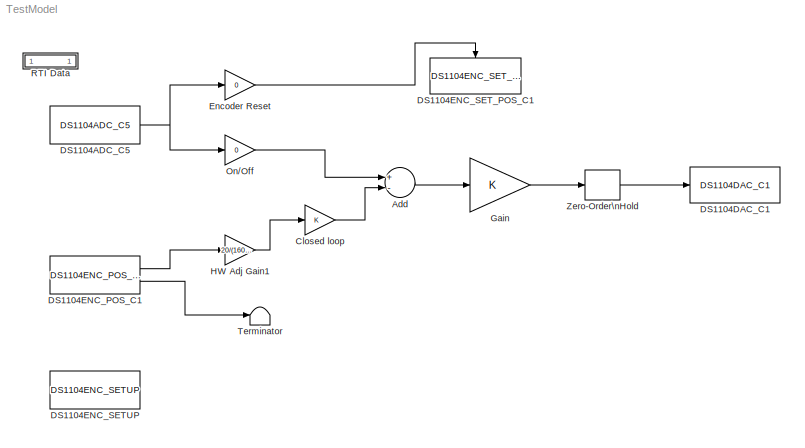
MODEL TestModel
KIND model
CONFIG PostLoadFcn = , if any(exist('dsrtsu_mdlpostloadfcn', 'file') == [2, 3, 6]), try dsrtsu_mdlpostloadfcn('Execute', bdroot); catch fprintf('Error in PostLoadFcn (dsrtsu_mdlpostloadfcn) for model \"%s\":\\n %s\\n', bdroot, lasterr); end, end, \n
BLOCK [Sum] Add
  InputSameDT = off
  Inputs = +-
  OutDataType = fixdt(1, 16)
  OutDataTypeMode = Inherit via internal rule
  OutDataTypeStr = Inherit: Inherit via internal rule
  OutScaling = 2^-10
  Ports = [2, 1]
  SaturateOnIntegerOverflow = off
BLOCK [Gain] Closed loop
  OutDataType = fixdt(1, 16)
  OutDataTypeMode = Inherit via internal rule
  OutDataTypeStr = Inherit: Inherit via internal rule
  OutScaling = 2^0
  ParamDataTypeStr = Inherit: Inherit via internal rule
  ParameterDataType = fixdt(1, 16)
  ParameterDataTypeMode = Inherit via internal rule
  ParameterScaling = 2^0
  SaturateOnIntegerOverflow = off
BLOCK [Reference] DS1104ADC_C5  REF=rtilib1104/DS1104 MASTER PPC/DS1104ADC_C5
  ChannelNo = 5
  DSProperties = struct('RTI',struct('Version',uint32(1),'BlockType',struct('isSLSource',uint8(1),'isSLSink',uint8(0),'isHWSource',uint8(1),'isHWSink',uint8(0),'isSetup',uint8(0),'isInline',uint8(1),'isNonInline',uint8(0),'isInterrupt',uint8(0),'isChannelwise',uint8(1)),'IOBoardType','DS1104MASTER','UnitType','ADC','Identifier','ADC','DialogType','ML','BlockSet','NONE','SlaveProcessor','NONE'))
  DialogFcn = gui1104adc
  FunctionWithSeparateData = off
  Ports = [0, 1]
  RTWMemSecDataConstants = Inherit from model
  RTWMemSecDataInternal = Inherit from model
  RTWMemSecDataParameters = Inherit from model
  RTWMemSecFuncExecute = Inherit from model
  RTWMemSecFuncInitTerm = Inherit from model
  Reserved1 = []
  Reserved2 = []
  Reserved3 = []
  Reserved4 = []
  ShowPortLabels = FromPortIcon
  SourceBlock = rtilib1104/DS1104 MASTER PPC/DS1104ADC_C5
  SourceType = RTI
  SystemSampleTime = -1
  TriggerMode = 0
  UnitName = { 'DS1104ADC_C' }
  UnitValues = { 5 }
BLOCK [Reference] DS1104DAC_C1  REF=rtilib1104/DS1104 MASTER PPC/DS1104DAC_C1
  ChannelNo = 1
  DSProperties = struct('RTI',struct('Version',uint32(1),'BlockType',struct('isSLSource',uint8(0),'isSLSink',uint8(1),'isHWSource',uint8(0),'isHWSink',uint8(1),'isSetup',uint8(0),'isInline',uint8(1),'isNonInline',uint8(0),'isInterrupt',uint8(0),'isChannelwise',uint8(1)),'IOBoardType','DS1104MASTER','UnitType','DAC','Identifier','DAC','DialogType','ML','BlockSet','NONE','SlaveProcessor','NONE'))
  DialogFcn = gui1104dac
  FunctionWithSeparateData = off
  InitValue = 0
  Ports = [1]
  RTWMemSecDataConstants = Inherit from model
  RTWMemSecDataInternal = Inherit from model
  RTWMemSecDataParameters = Inherit from model
  RTWMemSecFuncExecute = Inherit from model
  RTWMemSecFuncInitTerm = Inherit from model
  Reserved1 = []
  Reserved2 = []
  Reserved3 = []
  Reserved4 = []
  ShowPortLabels = FromPortIcon
  SourceBlock = rtilib1104/DS1104 MASTER PPC/DS1104DAC_C1
  SourceType = RTI
  SystemSampleTime = -1
  TermMode = 0
  TermValue = 0
  UnitName = { 'DS1104DAC_C'}
  UnitValues = { 1 }
BLOCK [Reference] DS1104ENC_POS_C1  REF=rtilib1104/DS1104 MASTER PPC/DS1104ENC_POS_C1
  ChannelNo = 1
  DSProperties = struct('RTI',struct('Version',uint32(1),'BlockType',struct('isSLSource',uint8(1),'isSLSink',uint8(0),'isHWSource',uint8(1),'isHWSink',uint8(0),'isSetup',uint8(0),'isInline',uint8(1),'isNonInline',uint8(0),'isInterrupt',uint8(0),'isChannelwise',uint8(1)),'IOBoardType','DS1104MASTER','UnitType','ENC','Identifier','ENCPOSCH','DialogType','ML','BlockSet','NONE','SlaveProcessor','NONE'))
  DialogFcn = gui1104enc_pos
  FunctionWithSeparateData = off
  Ports = [0, 2]
  PosValue = 0
  RTWMemSecDataConstants = Inherit from model
  RTWMemSecDataInternal = Inherit from model
  RTWMemSecDataParameters = Inherit from model
  RTWMemSecFuncExecute = Inherit from model
  RTWMemSecFuncInitTerm = Inherit from model
  Reserved1 = []
  Reserved2 = []
  Reserved3 = []
  Reserved4 = []
  ShowPortLabels = FromPortIcon
  SourceBlock = rtilib1104/DS1104 MASTER PPC/DS1104ENC_POS_C1
  SourceType = RTI
  SystemSampleTime = -1
  UnitName = {'DS1104ENC_POS_C'}
  UnitValues = { 1 }
BLOCK [Reference] DS1104ENC_SETUP  REF=rtilib1104/DS1104 MASTER PPC/DS1104ENC_SETUP
  DSProperties = struct('RTI',struct('Version',uint32(1),'BlockType',struct('isSLSource',uint8(0),'isSLSink',uint8(0),'isHWSource',uint8(0),'isHWSink',uint8(0),'isSetup',uint8(0),'isInline',uint8(1),'isNonInline',uint8(0),'isInterrupt',uint8(0),'isChannelwise',uint8(0)),'IOBoardType','DS1104MASTER','UnitType','ENC','Identifier','ENCSETUP','DialogType','ML','BlockSet','NONE','SlaveProcessor','NONE'))
  DialogFcn = gui1104enc_setup
  FunctionWithSeparateData = off
  Ports = []
  RTWMemSecDataConstants = Inherit from model
  RTWMemSecDataInternal = Inherit from model
  RTWMemSecDataParameters = Inherit from model
  RTWMemSecFuncExecute = Inherit from model
  RTWMemSecFuncInitTerm = Inherit from model
  Reserved1 = []
  Reserved2 = []
  Reserved3 = []
  Reserved4 = []
  ShowPortLabels = FromPortIcon
  SignalType = [0 0]
  SourceBlock = rtilib1104/DS1104 MASTER PPC/DS1104ENC_SETUP
  SourceType = RTI
  SystemSampleTime = -1
  UnitName = {'DS1104ENC_SETUP'}
  UnitValues = { [] }
BLOCK [Reference] DS1104ENC_SET_POS_C1  REF=rtilib1104/DS1104 MASTER PPC/DS1104ENC_SET_POS_C1
  ChannelNo = 1
  DSProperties = struct('RTI',struct('Version',uint32(1),'BlockType',struct('isSLSource',uint8(0),'isSLSink',uint8(1),'isHWSource',uint8(0),'isHWSink',uint8(1),'isSetup',uint8(0),'isInline',uint8(1),'isNonInline',uint8(0),'isInterrupt',uint8(0),'isChannelwise',uint8(1)),'IOBoardType','DS1104MASTER','UnitType','ENC','Identifier','ENCRESET','DialogType','ML','BlockSet','NONE','SlaveProcessor','NONE'))
  DialogFcn = gui1104enc_set_pos
  FunctionWithSeparateData = off
  Ports = [0, 0, 0, 1]
  PosValue = 0
  RTWMemSecDataConstants = Inherit from model
  RTWMemSecDataInternal = Inherit from model
  RTWMemSecDataParameters = Inherit from model
  RTWMemSecFuncExecute = Inherit from model
  RTWMemSecFuncInitTerm = Inherit from model
  Reserved1 = []
  Reserved2 = []
  Reserved3 = []
  Reserved4 = []
  ShowPortLabels = FromPortIcon
  SourceBlock = rtilib1104/DS1104 MASTER PPC/DS1104ENC_SET_POS_C1
  SourceType = RTI
  SystemSampleTime = -1
  UnitName = {'DS1104ENC_SET_POS_C'}
  UnitValues = { 1 }
BLOCK [Gain] Encoder Reset
  Gain = 0
  OutDataType = fixdt(1, 16)
  OutDataTypeMode = Inherit via internal rule
  OutDataTypeStr = Inherit: Inherit via internal rule
  OutScaling = 2^0
  ParamDataTypeStr = Inherit: Inherit via internal rule
  ParameterDataType = fixdt(1, 16)
  ParameterDataTypeMode = Inherit via internal rule
  ParameterScaling = 2^0
  SaturateOnIntegerOverflow = off
BLOCK [Gain] Gain
  OutDataType = fixdt(1, 16)
  OutDataTypeMode = Inherit via internal rule
  OutDataTypeStr = Inherit: Inherit via internal rule
  OutScaling = 2^0
  ParamDataTypeStr = Inherit: Inherit via internal rule
  ParameterDataType = fixdt(1, 16)
  ParameterDataTypeMode = Inherit via internal rule
  ParameterScaling = 2^0
  SaturateOnIntegerOverflow = off
BLOCK [Gain] HW Adj Gain1
  Gain = 20/(1604.1*7.06)
  OutDataType = fixdt(1, 16)
  OutDataTypeMode = Inherit via internal rule
  OutDataTypeStr = Inherit: Inherit via internal rule
  OutScaling = 2^0
  ParamDataTypeStr = Inherit: Inherit via internal rule
  ParameterDataType = fixdt(1, 16)
  ParameterDataTypeMode = Inherit via internal rule
  ParameterScaling = 2^0
  SaturateOnIntegerOverflow = off
BLOCK [Gain] On//Off
  Gain = 0
  OutDataType = fixdt(1, 16)
  OutDataTypeMode = Inherit via internal rule
  OutDataTypeStr = Inherit: Inherit via internal rule
  OutScaling = 2^0
  ParamDataTypeStr = Inherit: Inherit via internal rule
  ParameterDataType = fixdt(1, 16)
  ParameterDataTypeMode = Inherit via internal rule
  ParameterScaling = 2^0
  SaturateOnIntegerOverflow = off
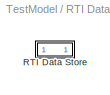
BLOCK [SubSystem] RTI Data
  CopyFcn = if exist('rtidc'), try,  rtidc('DataHostBlockClbCopy', gcbh); catch, disp(['Warning: ''CopyFcn'' for RTI Data block failed: ' lasterr]); end, end,
  DeleteFcn = if exist('rtidc'), try,  rtidc('DataHostBlockClbDelete', gcbh); catch, disp(['Warning: ''DeleteFcn'' for RTI Data block failed: ' lasterr]); end, end,
  FunctionWithSeparateData = off
  LoadFcn = if exist('rtidc'), try,  rtidc('DataHostBlockClbLoad', gcbh); catch, disp(['Warning: ''LoadFcn'' for RTI Data block failed: ' lasterr]); end, end,
  MaskDescription = RTI Data Block.\nThis block is used by RTI to store internal model-dependent data.\nPlease keep this block on the root level of the model. Deleting this block will result in data loss.\n\nNEVER DELETE OR COPY THIS BLOCK!
  MaskDisplay = text(0.5, 0.5, 'RTI Data', 'HorizontalAlignment', 'center');\nplot([1 0]);
  MaskHelp = RTI Data Block.\nThis block is used by RTI to store internal model-dependent data.\nPlease keep this block on the root level of the model. Deleting this block will result in data loss.\n\nNEVER DELETE OR COPY THIS BLOCK!
  MaskHideContents = off
  MaskIconFrame = on
  MaskIconOpaque = on
  MaskIconRotate = none
  MaskIconUnits = normalized
  MaskPortRotate = default
  MaskType = RTI_DATA_HOST
  MinAlgLoopOccurrences = off
  ModelCloseFcn = if exist('rtidc'), try,  rtidc('DataHostBlockClbModelClose', gcbh); catch, disp(['Warning: ''ModelCloseFcn'' for RTI Data block failed: ' lasterr]); end, end,
  NameChangeFcn = if exist('rtidc'), try,  rtidc('DataHostBlockClbNameChange', gcbh); catch, disp(['Warning: ''NameChangeFcn'' for RTI Data block failed: ' lasterr]); end, end,
  Opaque = off
  Ports = []
  PostSaveFcn = if exist('rtidc'), try,  rtidc('DataHostBlockClbPostSave', gcbh); catch, disp(['Warning: ''PostSaveFcn'' for RTI Data block failed: ' lasterr]); end, end,
  PreSaveFcn = if exist('rtidc'), try,  rtidc('DataHostBlockClbPreSave', gcbh); catch, disp(['Warning: ''PreSaveFcn'' for RTI Data block failed: ' lasterr]); end, end,
  PropExecContextOutsideSubsystem = off
  RTWSystemCode = Auto
  RequestExecContextInheritance = off
  Tag = struct('RTIDataServer',struct('RTIDataServerVs','2','RTIModelDescription','struct(''main'',''TestModel'',''sub'','''',''isMp'',0)'))
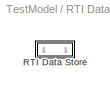
BLOCK [SubSystem] RTI Data/RTI Data Store
  FunctionWithSeparateData = off
  MaskDescription = RTI Data Store Block. This block is used by RTI to store internal model dependent data. Deleting this block will result in data loss.\n\nNEVER DELETE, COPY, OR MODIFY THIS BLOCK!
  MaskDisplay = text(0.5, 0.5, ' ', 'HorizontalAlignment', 'center');
  MaskHelp = RTI Data Store Block. This block is used by RTI to store internal model dependent data. Deleting this block will result in data loss.\n\nNEVER DELETE, COPY, OR MODIFY THIS BLOCK!
  MaskHideContents = off
  MaskIconFrame = off
  MaskIconOpaque = on
  MaskIconRotate = none
  MaskIconUnits = normalized
  MaskPortRotate = default
  MaskType = RTI_DATA_STORE
  MinAlgLoopOccurrences = off
  Opaque = off
  Ports = []
  PropExecContextOutsideSubsystem = off
  RTWSystemCode = Auto
  RequestExecContextInheritance = off
  Tag = struct('private',struct('version',struct('dsVer',uint32(2),'dsVerCreation',uint32(2),'RTI',struct('ver','6.3','type','RTI1104')),'access',struct('type','Model','isPerm',1,'created',['28-Feb-2011 10:32:34'],'modified',['23-Jan-2014 14:30:11'],'location','')),'public',struct('main',struct('data',[]),'sub',struct('name',{{'TestModel'}},'data',{{struct('TH',struct('thTaskInfo',struct('taskType',{'TIME...<+866ch>
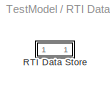
BLOCK [SubSystem] RTI Data/RTI Data Store/RTI Data Store
  FunctionWithSeparateData = off
  MaskDescription = RTI Data Store Block. This block is used by RTI to store internal model dependent data. Deleting this block will result in data loss.\n\nNEVER DELETE, COPY, OR MODIFY THIS BLOCK!
  MaskDisplay = text(0.5, 0.5, ' ', 'HorizontalAlignment', 'center');
  MaskHelp = RTI Data Store Block. This block is used by RTI to store internal model dependent data. Deleting this block will result in data loss.\n\nNEVER DELETE, COPY, OR MODIFY THIS BLOCK!
  MaskHideContents = off
  MaskIconFrame = off
  MaskIconOpaque = on
  MaskIconRotate = none
  MaskIconUnits = normalized
  MaskPortRotate = default
  MaskType = RTI_DATA_STORE
  MinAlgLoopOccurrences = off
  Opaque = off
  Ports = []
  PropExecContextOutsideSubsystem = off
  RTWSystemCode = Auto
  RequestExecContextInheritance = off
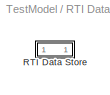
BLOCK [SubSystem] RTI Data/RTI Data Store/RTI Data Store/RTI Data Store
  FunctionWithSeparateData = off
  MaskDescription = RTI Data Store Block. This block is used by RTI to store internal model dependent data. Deleting this block will result in data loss.\n\nNEVER DELETE, COPY, OR MODIFY THIS BLOCK!
  MaskDisplay = text(0.5, 0.5, ' ', 'HorizontalAlignment', 'center');
  MaskHelp = RTI Data Store Block. This block is used by RTI to store internal model dependent data. Deleting this block will result in data loss.\n\nNEVER DELETE, COPY, OR MODIFY THIS BLOCK!
  MaskHideContents = off
  MaskIconFrame = off
  MaskIconOpaque = on
  MaskIconRotate = none
  MaskIconUnits = normalized
  MaskPortRotate = default
  MaskType = RTI_DATA_STORE
  MinAlgLoopOccurrences = off
  Opaque = off
  Ports = []
  PropExecContextOutsideSubsystem = off
  RTWSystemCode = Auto
  RequestExecContextInheritance = off
BLOCK [SubSystem] RTI Data/RTI Data Store/RTI Data Store/RTI Data Store/RTI Data Store
  FunctionWithSeparateData = off
  MaskDescription = RTI Data Store Block. This block is used by RTI to store internal model dependent data. Deleting this block will result in data loss.\n\nNEVER DELETE, COPY, OR MODIFY THIS BLOCK!
  MaskDisplay = text(0.5, 0.5, ' ', 'HorizontalAlignment', 'center');
  MaskHelp = RTI Data Store Block. This block is used by RTI to store internal model dependent data. Deleting this block will result in data loss.\n\nNEVER DELETE, COPY, OR MODIFY THIS BLOCK!
  MaskHideContents = off
  MaskIconFrame = off
  MaskIconOpaque = on
  MaskIconRotate = none
  MaskIconUnits = normalized
  MaskPortRotate = default
  MaskType = RTI_DATA_STORE
  MinAlgLoopOccurrences = off
  Opaque = off
  Ports = []
  PropExecContextOutsideSubsystem = off
  RTWSystemCode = Auto
  RequestExecContextInheritance = off
BLOCK [Terminator] Terminator
BLOCK [ZeroOrderHold] Zero-Order\nHold
  SampleTime = .01
LINE Add:1 -> Gain:1
LINE Closed loop:1 -> Add:2
NET DS1104ADC_C5:1 -> Encoder Reset:1, On//Off:1
LINE DS1104ENC_POS_C1:1 -> HW Adj Gain1:1
LINE DS1104ENC_POS_C1:2 -> Terminator:1
LINE Encoder Reset:1 -> DS1104ENC_SET_POS_C1:trigger
LINE Gain:1 -> Zero-Order\nHold:1
LINE HW Adj Gain1:1 -> Closed loop:1
LINE On//Off:1 -> Add:1
LINE Zero-Order\nHold:1 -> DS1104DAC_C1:1
note: NET lines group one-source signal fan-out (src -> all destinations, sorted); 1:1 wires keep LINE
